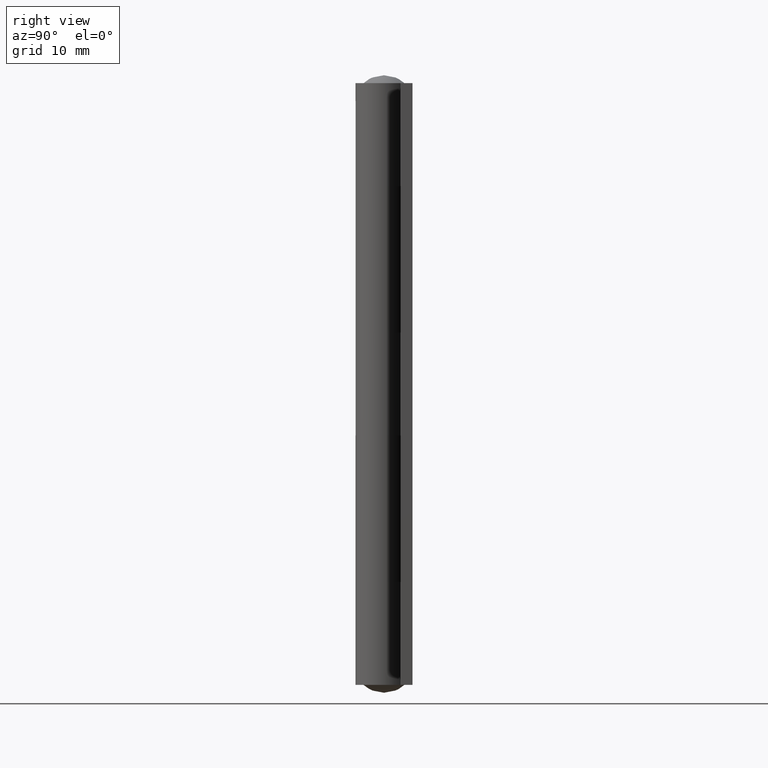
[diagram: clean part render]
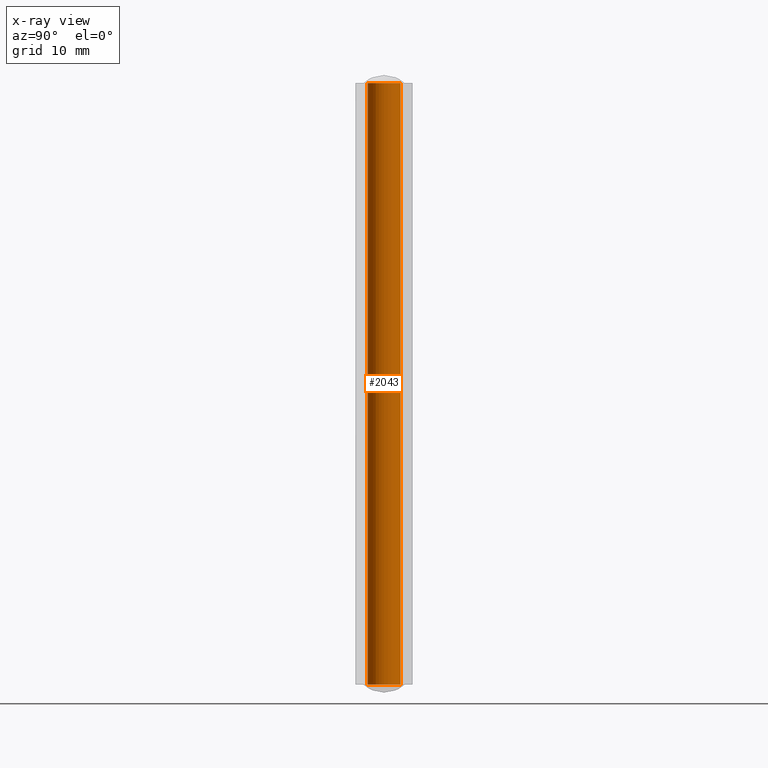
[diagram: x-ray — body ghosted, one internal face saturated and labeled with its STEP entity id]
A machine part, right view, then the same camera in x-ray: the body is ghosted and one INTERNAL B-rep face — a face not visible from any outside direction — is saturated and labeled: STEP entity #2043.
In plain terms, the highlighted face is a freeform B-spline surface patch.
Its self-contained STEP definition (entity closure, byte-faithful):
#1857=CARTESIAN_POINT('',(0.128202299624915,-2.096089065475722,1.110223E-015));
#1858=VERTEX_POINT('',#1857);
#1872=CARTESIAN_POINT('',(-2.100006000000000,0.0,0.0));
#1873=VERTEX_POINT('',#1872);
#1874=CARTESIAN_POINT('',(0.128202299624915,-2.096089065475721,0.0));
#1875=CARTESIAN_POINT('',(0.064160986399291,-2.100006000000000,0.0));
#1876=CARTESIAN_POINT('',(0.0,-2.100006000000000,0.0));
#1877=CARTESIAN_POINT('',(-2.100006000000000,-2.100006000000000,0.0));
#1878=CARTESIAN_POINT('',(-2.100006000000000,0.0,0.0));
#1886=(BOUNDED_CURVE()B_SPLINE_CURVE(2,(#1874,#1875,#1876,#1877,#1878),.UNSPECIFIED.,.F.,.U.)B_SPLINE_CURVE_WITH_KNOTS((3,2,3),(0.739332962216410,0.750000000000000,1.0),.UNSPECIFIED.)CURVE()GEOMETRIC_REPRESENTATION_ITEM()RATIONAL_B_SPLINE_CURVE((0.976072041618426,0.987502787873439,1.0,0.707106781186548,1.0))REPRESENTATION_ITEM(''));
#1887=EDGE_CURVE('',#1858,#1873,#1886,.T.);
#1889=CARTESIAN_POINT('',(-0.128202299624915,2.096089065475722,1.110223E-015));
#1890=VERTEX_POINT('',#1889);
#1891=CARTESIAN_POINT('',(-2.100006000000000,0.0,0.0));
#1892=CARTESIAN_POINT('',(-2.100005999999999,1.975488384445199,0.0));
#1893=CARTESIAN_POINT('',(-0.128202299624915,2.096089065475722,0.0));
#1901=(BOUNDED_CURVE()B_SPLINE_CURVE(2,(#1891,#1892,#1893),.UNSPECIFIED.,.F.,.U.)B_SPLINE_CURVE_WITH_KNOTS((3,3),(0.0,0.239332962216410),.UNSPECIFIED.)CURVE()GEOMETRIC_REPRESENTATION_ITEM()RATIONAL_B_SPLINE_CURVE((1.0,0.719603993313109,0.976072041618426))REPRESENTATION_ITEM(''));
#1902=EDGE_CURVE('',#1873,#1890,#1901,.T.);
#1940=CARTESIAN_POINT('',(-0.128202299624915,2.096089065475721,76.0));
#1941=VERTEX_POINT('',#1940);
#1959=CARTESIAN_POINT('',(0.128202299624915,-2.096089065475722,76.0));
#1960=VERTEX_POINT('',#1959);
#1974=CARTESIAN_POINT('',(0.128202299624915,-2.096089065475722,76.0));
#1975=CARTESIAN_POINT('',(0.128202299624915,-2.096089065475722,1.110223E-015));
#1976=QUASI_UNIFORM_CURVE('',1,(#1974,#1975),.UNSPECIFIED.,.F.,.U.);
#1977=EDGE_CURVE('',#1960,#1858,#1976,.T.);
#1981=CARTESIAN_POINT('',(-0.128202299624915,2.096089065475721,76.0));
#1982=CARTESIAN_POINT('',(-0.128202299624915,2.096089065475722,1.110223E-015));
#1983=QUASI_UNIFORM_CURVE('',1,(#1981,#1982),.UNSPECIFIED.,.F.,.U.);
#1984=EDGE_CURVE('',#1941,#1890,#1983,.T.);
#1989=CARTESIAN_POINT('',(0.128202299314437,-2.096089065494711,77.900000000000020));
#1990=CARTESIAN_POINT('',(-1.967886766180275,-2.224291364809147,77.900000000000020));
#1991=CARTESIAN_POINT('',(-2.096089065494711,-0.128202299314437,77.900000000000020));
#1992=CARTESIAN_POINT('',(-2.224291364809147,1.967886766180275,77.900000000000020));
#1993=CARTESIAN_POINT('',(-0.128202299314437,2.096089065494711,77.900000000000020));
#1994=CARTESIAN_POINT('',(0.128202299314437,-2.096089065494711,-1.947499999999991));
#1995=CARTESIAN_POINT('',(-1.967886766180275,-2.224291364809147,-1.947499999999991));
#1996=CARTESIAN_POINT('',(-2.096089065494711,-0.128202299314437,-1.947499999999991));
#1997=CARTESIAN_POINT('',(-2.224291364809147,1.967886766180275,-1.947499999999991));
#1998=CARTESIAN_POINT('',(-0.128202299314437,2.096089065494711,-1.947499999999991));
#2006=(BOUNDED_SURFACE()B_SPLINE_SURFACE(2,1,((#1989,#1994),(#1990,#1995),(#1991,#1996),(#1992,#1997),(#1993,#1998)),.UNSPECIFIED.,.F.,.F.,.U.)B_SPLINE_SURFACE_WITH_KNOTS((3,2,3),(2,2),(0.0,3.479403865059495,6.958807730118990),(0.0,79.847500000000025),.UNSPECIFIED.)GEOMETRIC_REPRESENTATION_ITEM()RATIONAL_B_SPLINE_SURFACE(((1.0,1.0),(0.707106781186548,0.707106781186548),(1.0,1.0),(0.707106781186548,0.707106781186548),(1.0,1.0)))REPRESENTATION_ITEM('')SURFACE());
#2007=CARTESIAN_POINT('',(-2.100006000000000,0.0,76.0));
#2008=VERTEX_POINT('',#2007);
#2009=CARTESIAN_POINT('',(-2.100006000000000,0.0,76.0));
#2010=CARTESIAN_POINT('',(-2.100006000000001,1.975488384445200,76.0));
#2011=CARTESIAN_POINT('',(-0.128202299624915,2.096089065475721,75.999999999999986));
#2019=(BOUNDED_CURVE()B_SPLINE_CURVE(2,(#2009,#2010,#2011),.UNSPECIFIED.,.F.,.U.)B_SPLINE_CURVE_WITH_KNOTS((3,3),(0.0,0.239332962216410),.UNSPECIFIED.)CURVE()GEOMETRIC_REPRESENTATION_ITEM()RATIONAL_B_SPLINE_CURVE((1.0,0.719603993313109,0.976072041618426))REPRESENTATION_ITEM(''));
#2020=EDGE_CURVE('',#2008,#1941,#2019,.T.);
#2021=ORIENTED_EDGE('',*,*,#2020,.T.);
#2022=ORIENTED_EDGE('',*,*,#1984,.T.);
#2023=ORIENTED_EDGE('',*,*,#1902,.F.);
#2024=ORIENTED_EDGE('',*,*,#1887,.F.);
#2025=ORIENTED_EDGE('',*,*,#1977,.F.);
#2026=CARTESIAN_POINT('',(0.128202299624915,-2.096089065475721,75.999999999999986));
#2027=CARTESIAN_POINT('',(0.064160986399291,-2.100006000000000,75.999999999999986));
#2028=CARTESIAN_POINT('',(0.0,-2.100006000000000,76.0));
#2029=CARTESIAN_POINT('',(-2.100006000000000,-2.100006000000000,76.0));
#2030=CARTESIAN_POINT('',(-2.100006000000000,0.0,76.0));
#2038=(BOUNDED_CURVE()B_SPLINE_CURVE(2,(#2026,#2027,#2028,#2029,#2030),.UNSPECIFIED.,.F.,.U.)B_SPLINE_CURVE_WITH_KNOTS((3,2,3),(0.739332962216410,0.750000000000000,1.0),.UNSPECIFIED.)CURVE()GEOMETRIC_REPRESENTATION_ITEM()RATIONAL_B_SPLINE_CURVE((0.976072041618426,0.987502787873439,1.0,0.707106781186548,1.0))REPRESENTATION_ITEM(''));
#2039=EDGE_CURVE('',#1960,#2008,#2038,.T.);
#2040=ORIENTED_EDGE('',*,*,#2039,.T.);
#2041=EDGE_LOOP('',(#2021,#2022,#2023,#2024,#2025,#2040));
#2042=FACE_OUTER_BOUND('',#2041,.T.);
#2043=ADVANCED_FACE('',(#2042),#2006,.T.);